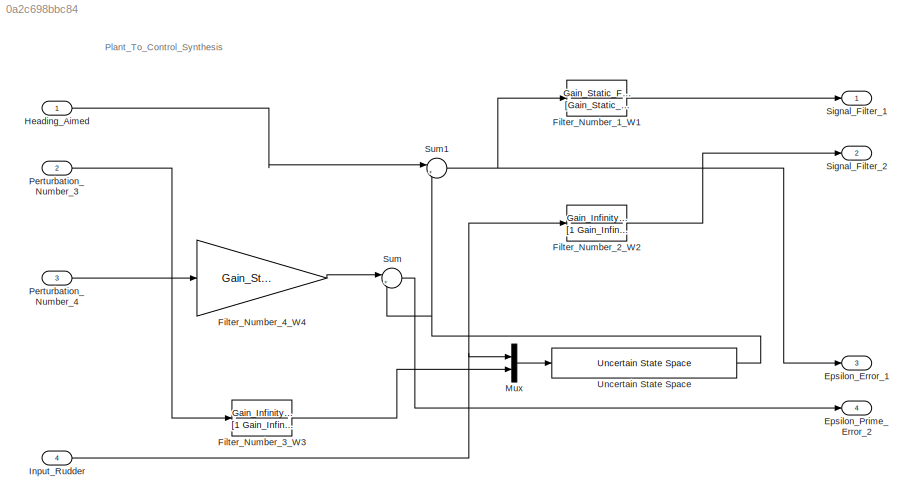
MODEL slx_0a2c698bbc84
KIND model
CONFIG AbsTol = auto
CONFIG EnableMultiTasking = off
CONFIG FixedStep = auto
CONFIG MaxStep = auto
CONFIG MinStep = auto
CONFIG RelTol = 1e-3
CONFIG SampleTimeConstraint = Unconstrained
CONFIG SolverName = VariableStepAuto
CONFIG StartTime = 0.0
CONFIG StopTime = 10.0
BLOCK [Outport] Epsilon_Error_1
  Port = 3
BLOCK [Outport] Epsilon_Prime_Error_2
  Port = 4
BLOCK [TransferFcn] Filter_Number_1_W1
  Denominator = [Gain_Static_Filter_1 Pulsation_Unit_Gain_Filter_1]
  Numerator = Gain_Static_Filter_1*[Gain_Infinity_Filter_1 Pulsation_Unit_Gain_Filter_1]
BLOCK [TransferFcn] Filter_Number_2_W2
  Denominator = [1 Gain_Infinity_Filter_2*Pulsation_Unit_Gain_Filter_2]
  Numerator = Gain_Infinity_Filter_2*[1 Gain_Static_Filter_2*Pulsation_Unit_Gain_Filter_2]
BLOCK [TransferFcn] Filter_Number_3_W3
  Denominator = [1 Gain_Infinity_Filter_3*Pulsation_Unit_Gain_Filter_3]
  Numerator = Gain_Infinity_Filter_3*[1 Gain_Static_Filter_3*Pulsation_Unit_Gain_Filter_3]
BLOCK [Gain] Filter_Number_4_W4
  Gain = Gain_Static_Filter_4
BLOCK [Inport] Heading_Aimed
BLOCK [Inport] Input_Rudder
  Port = 4
BLOCK [Mux] Mux
  DisplayOption = bar
  Inputs = 2
BLOCK [Inport] Perturbation_Number_3
  Port = 2
BLOCK [Inport] Perturbation_Number_4
  Port = 3
BLOCK [Outport] Signal_Filter_1
BLOCK [Outport] Signal_Filter_2
  Port = 2
BLOCK [Sum] Sum
  Inputs = |+-
BLOCK [Sum] Sum1
  Inputs = |+-
BLOCK [Reference] Uncertain State Space  REF=RCTblocks/Uncertain State Space
  SourceBlock = RCTblocks/Uncertain State Space
  SourceType = Uncertain State Space Block
  Tag = USS
ANNOTATION (root): Plant_To_Control_Synthesis
LINE Filter_Number_1_W1:1 -> Signal_Filter_1:1
LINE Filter_Number_2_W2:1 -> Signal_Filter_2:1
LINE Filter_Number_3_W3:1 -> Mux:2
LINE Filter_Number_4_W4:1 -> Sum:1
LINE Heading_Aimed:1 -> Sum1:1
NET Input_Rudder:1 -> Filter_Number_2_W2:1, Mux:1
LINE Mux:1 -> Uncertain State Space:1
LINE Perturbation_Number_3:1 -> Filter_Number_3_W3:1
LINE Perturbation_Number_4:1 -> Filter_Number_4_W4:1
NET Sum1:1 -> Epsilon_Error_1:1, Filter_Number_1_W1:1
LINE Sum:1 -> Epsilon_Prime_Error_2:1
NET Uncertain State Space:1 -> Sum1:2, Sum:2
note: NET lines group one-source signal fan-out (src -> all destinations, sorted); 1:1 wires keep LINE
